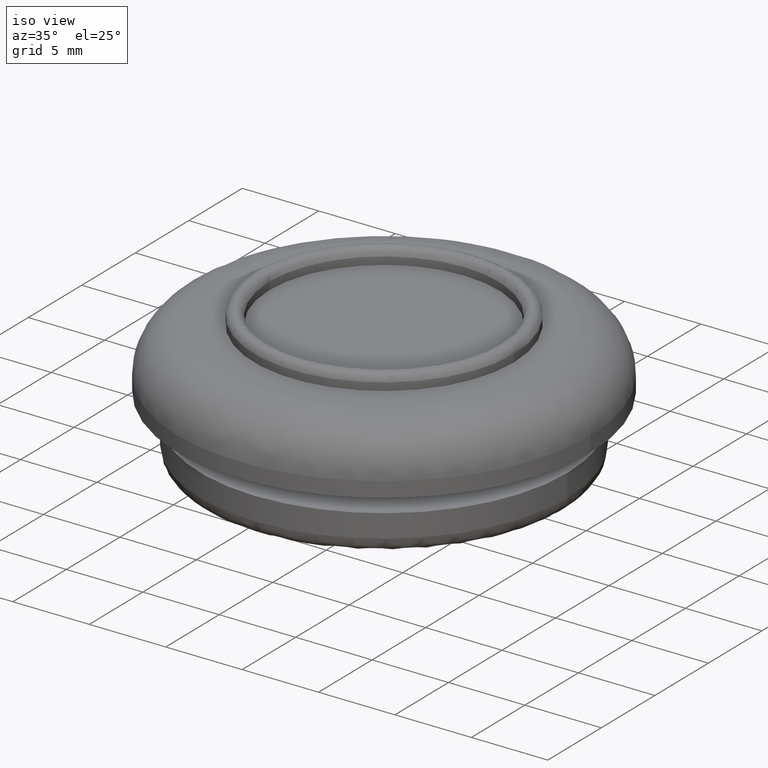
[diagram: clean part render]
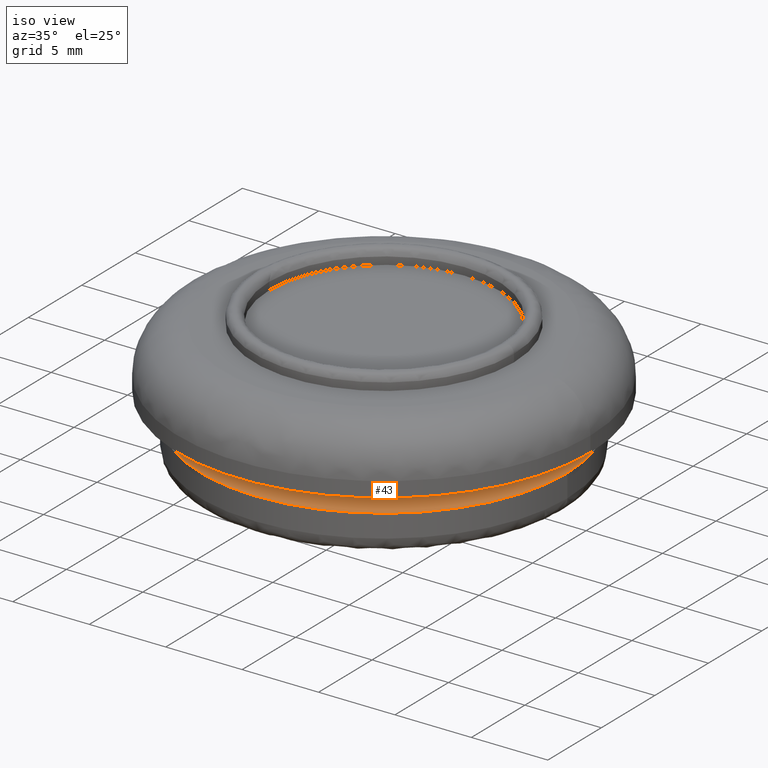
[diagram: same view with one face highlighted and labeled with its STEP entity id]
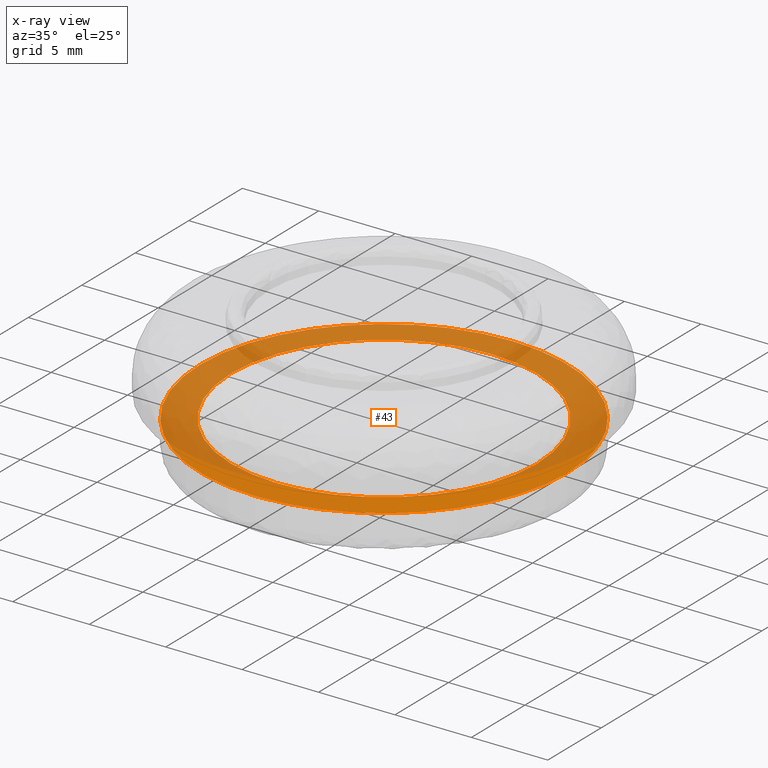
[diagram: x-ray of the same camera — body ghosted, the highlighted face saturated]
A machine part, iso view. The second image highlights one B-rep face of the part: STEP entity #43.
The next image is the same camera in x-ray: the body ghosted, the highlighted face saturated — about 67% of this face is hidden behind the body in this view.
In plain terms, the highlighted planar face has unit normal (0, 0, -1).
Its self-contained STEP definition (entity closure, byte-faithful):
#43=ADVANCED_FACE('',(#96,#97),#95,.F.);
#95=PLANE('',#327);
#96=FACE_OUTER_BOUND('',#328,.T.);
#97=FACE_BOUND('',#329,.T.);
#324=CARTESIAN_POINT('',(3.04378069758E+002,-2.49415316290E+001,2.66137988893E+002));
#325=DIRECTION('',(0.00000000000E+000,0.00000000000E+000,-1.00000000000E+000));
#326=DIRECTION('',(-1.00000000000E+000,0.00000000000E+000,0.00000000000E+000));
#327=AXIS2_PLACEMENT_3D('',#324,#325,#326);
#328=EDGE_LOOP('',(#566,#567));
#329=EDGE_LOOP('',(#568,#569));
#566=ORIENTED_EDGE('',*,*,#658,.F.);
#567=ORIENTED_EDGE('',*,*,#659,.F.);
#568=ORIENTED_EDGE('',*,*,#660,.T.);
#569=ORIENTED_EDGE('',*,*,#661,.T.);
#658=EDGE_CURVE('',#752,#753,#754,.T.);
#659=EDGE_CURVE('',#753,#752,#760,.T.);
#660=EDGE_CURVE('',#766,#767,#768,.T.);
#661=EDGE_CURVE('',#767,#766,#774,.T.);
#752=VERTEX_POINT('',#1040);
#753=VERTEX_POINT('',#1041);
#754=CIRCLE('',#1045,1.20000000000E+001);
#760=CIRCLE('',#1049,1.20000000000E+001);
#766=VERTEX_POINT('',#1050);
#767=VERTEX_POINT('',#1051);
#768=CIRCLE('',#1055,1.00000000000E+001);
#774=CIRCLE('',#1059,1.00000000000E+001);
#1040=CARTESIAN_POINT('',(2.88778069758E+002,-2.30926389122E-014,2.66137988893E+002));
#1041=CARTESIAN_POINT('',(2.64778069758E+002,2.57679439129E-014,2.66137988893E+002));
#1042=CARTESIAN_POINT('',(2.76778069758E+002,0.00000000000E+000,2.66137988893E+002));
#1043=DIRECTION('',(0.00000000000E+000,0.00000000000E+000,-1.00000000000E+000));
#1044=DIRECTION('',(-1.00000000000E+000,1.82570008494E-015,0.00000000000E+000));
#1045=AXIS2_PLACEMENT_3D('',#1042,#1043,#1044);
#1046=CARTESIAN_POINT('',(2.76778069758E+002,0.00000000000E+000,2.66137988893E+002));
#1047=DIRECTION('',(0.00000000000E+000,0.00000000000E+000,-1.00000000000E+000));
#1048=DIRECTION('',(-1.00000000000E+000,1.82570008494E-015,0.00000000000E+000));
#1049=AXIS2_PLACEMENT_3D('',#1046,#1047,#1048);
#1050=CARTESIAN_POINT('',(2.86778069758E+002,-2.09798541387E-014,2.66137988893E+002));
#1051=CARTESIAN_POINT('',(2.66778069758E+002,-1.77635683940E-015,2.66137988893E+002));
#1052=CARTESIAN_POINT('',(2.76778069758E+002,0.00000000000E+000,2.66137988893E+002));
#1053=DIRECTION('',(0.00000000000E+000,0.00000000000E+000,-1.00000000000E+000));
#1054=DIRECTION('',(1.00000000000E+000,-1.77635683940E-015,-0.00000000000E+000));
#1055=AXIS2_PLACEMENT_3D('',#1052,#1053,#1054);
#1056=CARTESIAN_POINT('',(2.76778069758E+002,0.00000000000E+000,2.66137988893E+002));
#1057=DIRECTION('',(0.00000000000E+000,0.00000000000E+000,-1.00000000000E+000));
#1058=DIRECTION('',(1.00000000000E+000,-1.77635683940E-015,-0.00000000000E+000));
#1059=AXIS2_PLACEMENT_3D('',#1056,#1057,#1058);